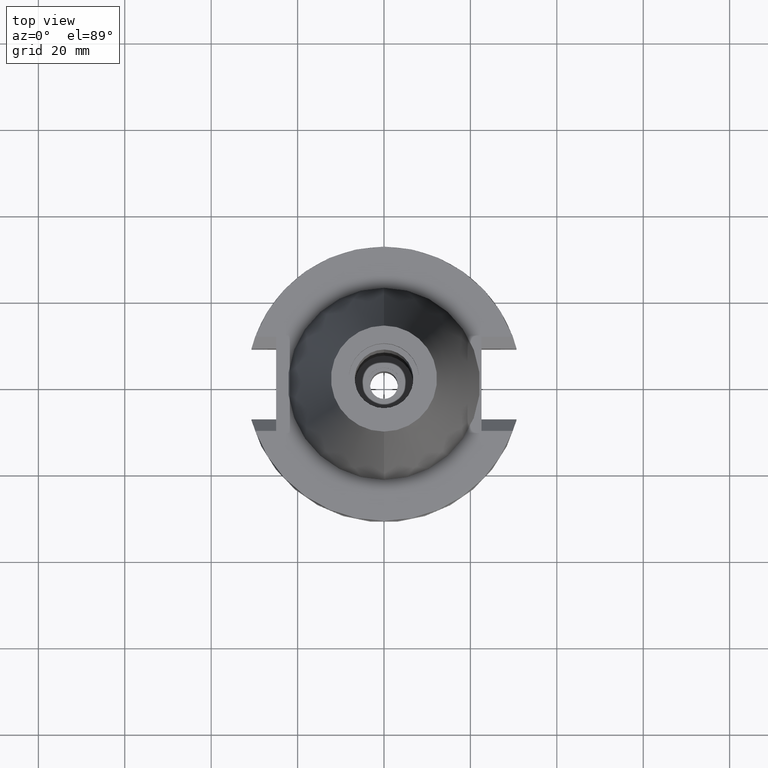
[diagram: clean part render]
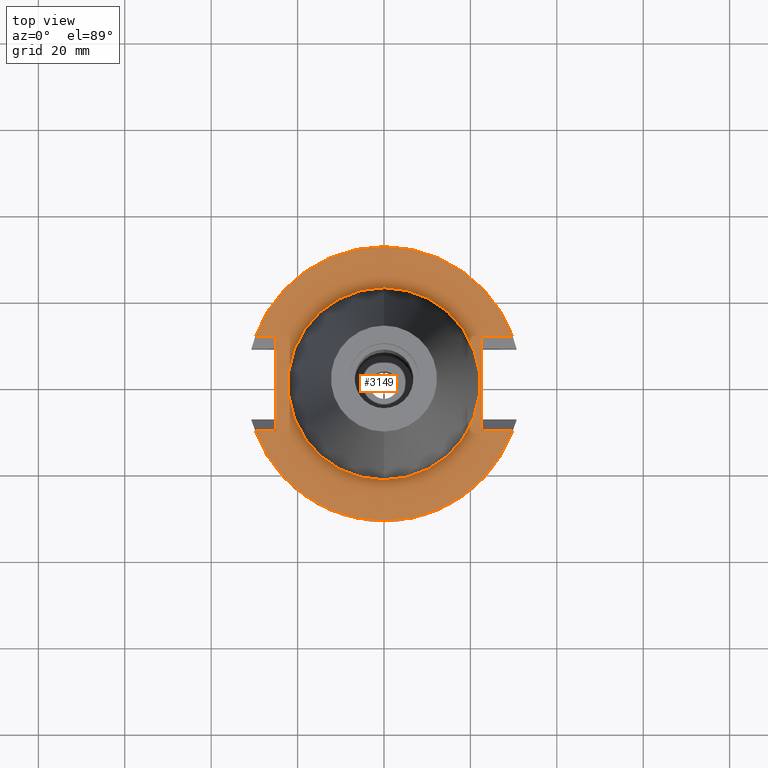
[diagram: same view with one face highlighted and labeled with its STEP entity id]
A machine part, top view. The second image highlights one B-rep face of the part: STEP entity #3149.
In plain terms, the highlighted planar face has unit normal (0, 0, -1).
Its self-contained STEP definition (entity closure, byte-faithful):
#36 = DIRECTION ( 'NONE',  ( 0.0000000000000000000, -1.000000000000000000, 0.0000000000000000000 ) ) ;
#62 = DIRECTION ( 'NONE',  ( -1.000000000000000000, 8.727782216946000332E-14, 0.0000000000000000000 ) ) ;
#69 = EDGE_CURVE ( 'NONE', #488, #3326, #1896, .T. ) ;
#119 = DIRECTION ( 'NONE',  ( -1.000000000000000000, -8.727782216946000332E-14, 0.0000000000000000000 ) ) ;
#133 = LINE ( 'NONE', #629, #374 ) ;
#208 = CARTESIAN_POINT ( 'NONE',  ( 0.0000000000000000000, 22.22500000000000142, -0.9999999999999000799 ) ) ;
#213 = DIRECTION ( 'NONE',  ( 0.0000000000000000000, 1.000000000000000000, 0.0000000000000000000 ) ) ;
#228 = ORIENTED_EDGE ( 'NONE', *, *, #3356, .F. ) ;
#262 = DIRECTION ( 'NONE',  ( 0.0000000000000000000, 1.000000000000000000, 0.0000000000000000000 ) ) ;
#280 = DIRECTION ( 'NONE',  ( 0.0000000000000000000, 0.0000000000000000000, 1.000000000000000000 ) ) ;
#313 = VERTEX_POINT ( 'NONE', #1915 ) ;
#374 = VECTOR ( 'NONE', #119, 1000.000000000000000 ) ;
#440 = VERTEX_POINT ( 'NONE', #3022 ) ;
#441 = LINE ( 'NONE', #2908, #1759 ) ;
#476 = CARTESIAN_POINT ( 'NONE',  ( -24.98000000000000043, -10.89000000000000057, -1.000000000000000000 ) ) ;
#488 = VERTEX_POINT ( 'NONE', #1232 ) ;
#552 = ORIENTED_EDGE ( 'NONE', *, *, #2315, .F. ) ;
#603 = CARTESIAN_POINT ( 'NONE',  ( 29.82399034335000110, 10.89000000000000057, -1.000000000001000089 ) ) ;
#629 = CARTESIAN_POINT ( 'NONE',  ( -24.98000000000000043, 10.89000000000000057, -1.000000000000000000 ) ) ;
#736 = VERTEX_POINT ( 'NONE', #1419 ) ;
#786 = CIRCLE ( 'NONE', #900, 31.75000000000000000 ) ;
#827 = CARTESIAN_POINT ( 'NONE',  ( 22.57000000000000028, 10.89000000000000057, -1.000000000000000000 ) ) ;
#853 = DIRECTION ( 'NONE',  ( 1.000000000000000000, -5.779166972325999752E-14, 0.0000000000000000000 ) ) ;
#880 = VERTEX_POINT ( 'NONE', #3277 ) ;
#896 = CIRCLE ( 'NONE', #1821, 22.22500000000000142 ) ;
#900 = AXIS2_PLACEMENT_3D ( 'NONE', #2461, #1744, #1959 ) ;
#902 = ORIENTED_EDGE ( 'NONE', *, *, #2585, .F. ) ;
#921 = CARTESIAN_POINT ( 'NONE',  ( -24.98000000000000043, 10.89000000000000057, -1.000000000000000000 ) ) ;
#982 = DIRECTION ( 'NONE',  ( 0.0000000000000000000, -1.000000000000000000, 0.0000000000000000000 ) ) ;
#986 = DIRECTION ( 'NONE',  ( 1.000000000000000000, 5.877118954907999932E-14, 0.0000000000000000000 ) ) ;
#1046 = FACE_BOUND ( 'NONE', #1577, .T. ) ;
#1059 = VECTOR ( 'NONE', #853, 1000.000000000000000 ) ;
#1062 = CIRCLE ( 'NONE', #3295, 22.22500000000000142 ) ;
#1140 = DIRECTION ( 'NONE',  ( 0.0000000000000000000, -1.000000000000000000, 0.0000000000000000000 ) ) ;
#1163 = VECTOR ( 'NONE', #1140, 1000.000000000000000 ) ;
#1178 = FACE_OUTER_BOUND ( 'NONE', #2189, .T. ) ;
#1232 = CARTESIAN_POINT ( 'NONE',  ( -29.82399034335000110, 10.89000000000000057, -1.000000000000000000 ) ) ;
#1259 = ORIENTED_EDGE ( 'NONE', *, *, #69, .F. ) ;
#1287 = AXIS2_PLACEMENT_3D ( 'NONE', #2017, #1786, #213 ) ;
#1312 = DIRECTION ( 'NONE',  ( 0.0000000000000000000, -1.000000000000000000, 0.0000000000000000000 ) ) ;
#1327 = CARTESIAN_POINT ( 'NONE',  ( 0.0000000000000000000, 2.145121949555999817E-14, -0.9999999999999000799 ) ) ;
#1419 = CARTESIAN_POINT ( 'NONE',  ( -24.98000000000000043, 10.89000000000000057, -1.000000000000000000 ) ) ;
#1485 = VECTOR ( 'NONE', #986, 1000.000000000000000 ) ;
#1491 = ORIENTED_EDGE ( 'NONE', *, *, #2210, .T. ) ;
#1528 = VERTEX_POINT ( 'NONE', #476 ) ;
#1577 = EDGE_LOOP ( 'NONE', ( #2095, #552 ) ) ;
#1594 = CARTESIAN_POINT ( 'NONE',  ( 22.57000000000000028, 10.89000000000000057, -1.000000000000000000 ) ) ;
#1614 = ORIENTED_EDGE ( 'NONE', *, *, #2397, .T. ) ;
#1734 = LINE ( 'NONE', #2036, #1485 ) ;
#1744 = DIRECTION ( 'NONE',  ( 0.0000000000000000000, 0.0000000000000000000, -1.000000000000000000 ) ) ;
#1759 = VECTOR ( 'NONE', #62, 1000.000000000000000 ) ;
#1786 = DIRECTION ( 'NONE',  ( 0.0000000000000000000, 0.0000000000000000000, -1.000000000000000000 ) ) ;
#1816 = DIRECTION ( 'NONE',  ( 0.0000000000000000000, 0.0000000000000000000, 1.000000000000000000 ) ) ;
#1821 = AXIS2_PLACEMENT_3D ( 'NONE', #1327, #280, #1312 ) ;
#1896 = CIRCLE ( 'NONE', #1287, 31.75000000000000000 ) ;
#1915 = CARTESIAN_POINT ( 'NONE',  ( 29.82399034335000110, -10.89000000000000057, -1.000000000001000089 ) ) ;
#1959 = DIRECTION ( 'NONE',  ( 0.0000000000000000000, -1.000000000000000000, 0.0000000000000000000 ) ) ;
#2017 = CARTESIAN_POINT ( 'NONE',  ( 0.0000000000000000000, 2.145121949555999817E-14, -1.000000000000000000 ) ) ;
#2025 = EDGE_CURVE ( 'NONE', #736, #488, #133, .T. ) ;
#2036 = CARTESIAN_POINT ( 'NONE',  ( 22.57000000000000028, -10.89000000000000057, -1.000000000000000000 ) ) ;
#2068 = CARTESIAN_POINT ( 'NONE',  ( 0.0000000000000000000, 1.212400331155999925E-14, -1.000000000000000000 ) ) ;
#2074 = CARTESIAN_POINT ( 'NONE',  ( 0.0000000000000000000, 2.145121949555999817E-14, -0.9999999999999000799 ) ) ;
#2095 = ORIENTED_EDGE ( 'NONE', *, *, #2896, .F. ) ;
#2189 = EDGE_LOOP ( 'NONE', ( #1614, #1259, #3135, #2348, #1491, #2251, #902, #228 ) ) ;
#2210 = EDGE_CURVE ( 'NONE', #1528, #2387, #441, .T. ) ;
#2215 = LINE ( 'NONE', #921, #1163 ) ;
#2251 = ORIENTED_EDGE ( 'NONE', *, *, #3059, .F. ) ;
#2315 = EDGE_CURVE ( 'NONE', #440, #3236, #896, .T. ) ;
#2348 = ORIENTED_EDGE ( 'NONE', *, *, #2462, .T. ) ;
#2358 = LINE ( 'NONE', #827, #3352 ) ;
#2387 = VERTEX_POINT ( 'NONE', #2895 ) ;
#2397 = EDGE_CURVE ( 'NONE', #2952, #3326, #3183, .T. ) ;
#2461 = CARTESIAN_POINT ( 'NONE',  ( 0.0000000000000000000, 2.145121949555999817E-14, -1.000000000000000000 ) ) ;
#2462 = EDGE_CURVE ( 'NONE', #736, #1528, #2215, .T. ) ;
#2585 = EDGE_CURVE ( 'NONE', #880, #313, #1734, .T. ) ;
#2895 = CARTESIAN_POINT ( 'NONE',  ( -29.82399034335000110, -10.89000000000000057, -1.000000000001000089 ) ) ;
#2896 = EDGE_CURVE ( 'NONE', #3236, #440, #1062, .T. ) ;
#2908 = CARTESIAN_POINT ( 'NONE',  ( -24.98000000000000043, -10.89000000000000057, -1.000000000000000000 ) ) ;
#2952 = VERTEX_POINT ( 'NONE', #3294 ) ;
#3022 = CARTESIAN_POINT ( 'NONE',  ( 0.0000000000000000000, -22.22500000000000142, -0.9999999999999000799 ) ) ;
#3059 = EDGE_CURVE ( 'NONE', #313, #2387, #786, .T. ) ;
#3102 = DIRECTION ( 'NONE',  ( 0.0000000000000000000, 0.0000000000000000000, -1.000000000000000000 ) ) ;
#3119 = PLANE ( 'NONE',  #3351 ) ;
#3135 = ORIENTED_EDGE ( 'NONE', *, *, #2025, .F. ) ;
#3149 = ADVANCED_FACE ( 'NONE', ( #1178, #1046 ), #3119, .F. ) ;
#3183 = LINE ( 'NONE', #1594, #1059 ) ;
#3236 = VERTEX_POINT ( 'NONE', #208 ) ;
#3277 = CARTESIAN_POINT ( 'NONE',  ( 22.57000000000000028, -10.89000000000000057, -1.000000000000000000 ) ) ;
#3294 = CARTESIAN_POINT ( 'NONE',  ( 22.57000000000000028, 10.89000000000000057, -1.000000000000000000 ) ) ;
#3295 = AXIS2_PLACEMENT_3D ( 'NONE', #2074, #1816, #262 ) ;
#3326 = VERTEX_POINT ( 'NONE', #603 ) ;
#3351 = AXIS2_PLACEMENT_3D ( 'NONE', #2068, #3102, #982 ) ;
#3352 = VECTOR ( 'NONE', #36, 1000.000000000000000 ) ;
#3356 = EDGE_CURVE ( 'NONE', #2952, #880, #2358, .T. ) ;